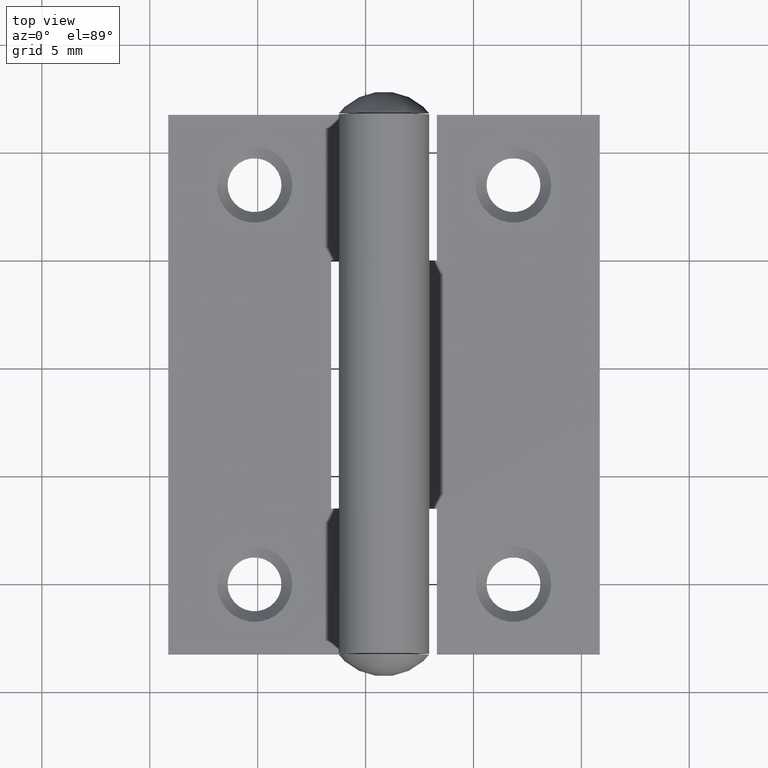
[diagram: clean part render]
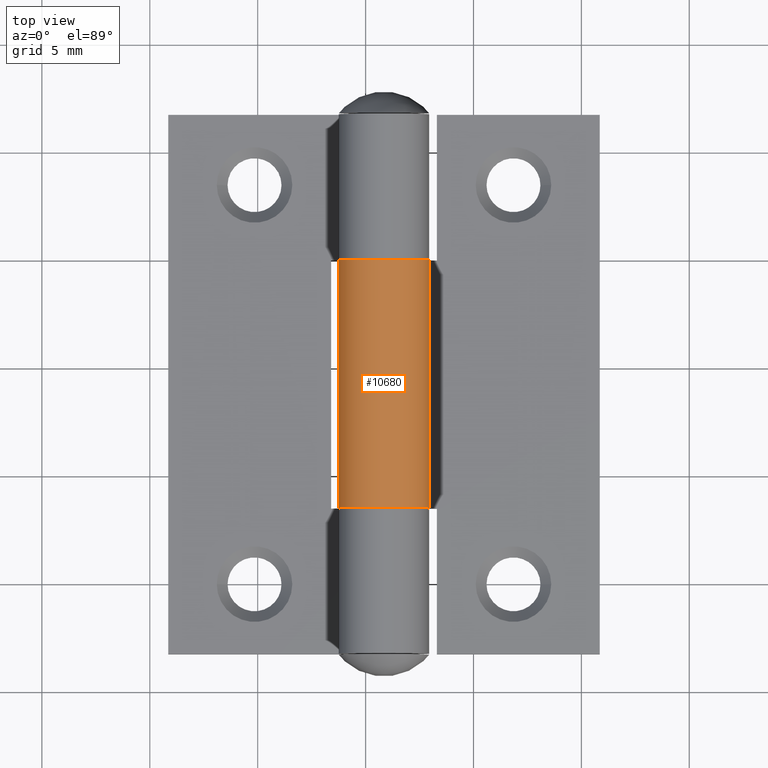
[diagram: same view with one face highlighted and labeled with its STEP entity id]
A machine part, top view. The second image highlights one B-rep face of the part: STEP entity #10680.
In plain terms, the highlighted cylindrical surface (partial cylindrical patch) has radius 2.1 mm, axis along (0, 1, -0).
Its self-contained STEP definition (entity closure, byte-faithful):
#32 = DIRECTION ( 'NONE',  ( 0.000000000000000000, 0.000000000000000000, -1.000000000000000000 ) ) ;
#181 = EDGE_LOOP ( 'NONE', ( #5241, #6481, #1416, #2288 ) ) ;
#466 = DIRECTION ( 'NONE',  ( 0.000000000000000000, 0.000000000000000000, -1.000000000000000000 ) ) ;
#794 = VERTEX_POINT ( 'NONE', #11299 ) ;
#841 = CARTESIAN_POINT ( 'NONE',  ( -3.749242250247063257, -5.750000000000001776, 0.8000000000000000444 ) ) ;
#925 = VERTEX_POINT ( 'NONE', #8075 ) ;
#1055 = DIRECTION ( 'NONE',  ( 0.000000000000000000, 0.000000000000000000, 1.000000000000000000 ) ) ;
#1316 = EDGE_CURVE ( 'NONE', #9497, #794, #11236, .T. ) ;
#1416 = ORIENTED_EDGE ( 'NONE', *, *, #5934, .T. ) ;
#1774 = CARTESIAN_POINT ( 'NONE',  ( -2.100000000000000089, 5.750000000000000000, 2.100000000000000089 ) ) ;
#2288 = ORIENTED_EDGE ( 'NONE', *, *, #8865, .T. ) ;
#2298 = FACE_OUTER_BOUND ( 'NONE', #181, .T. ) ;
#2603 = VECTOR ( 'NONE', #3837, 1000.000000000000000 ) ;
#2668 = CARTESIAN_POINT ( 'NONE',  ( -2.099999999999999645, 5.750000000000000000, 2.732189474663468709E-16 ) ) ;
#2675 = AXIS2_PLACEMENT_3D ( 'NONE', #9840, #6306, #1055 ) ;
#3837 = DIRECTION ( 'NONE',  ( -0.000000000000000000, -1.000000000000000000, -0.000000000000000000 ) ) ;
#3869 = AXIS2_PLACEMENT_3D ( 'NONE', #6568, #8365, #466 ) ;
#5041 = DIRECTION ( 'NONE',  ( -0.000000000000000000, -1.000000000000000000, -0.000000000000000000 ) ) ;
#5053 = AXIS2_PLACEMENT_3D ( 'NONE', #1774, #11301, #32 ) ;
#5241 = ORIENTED_EDGE ( 'NONE', *, *, #1316, .F. ) ;
#5318 = EDGE_CURVE ( 'NONE', #9497, #925, #7748, .T. ) ;
#5578 = CARTESIAN_POINT ( 'NONE',  ( -2.099999999999999645, 12.50000000000000000, 0.000000000000000000 ) ) ;
#5934 = EDGE_CURVE ( 'NONE', #925, #9910, #10323, .T. ) ;
#6306 = DIRECTION ( 'NONE',  ( 0.000000000000000000, 1.000000000000000000, -0.000000000000000000 ) ) ;
#6481 = ORIENTED_EDGE ( 'NONE', *, *, #5318, .T. ) ;
#6568 = CARTESIAN_POINT ( 'NONE',  ( -2.100000000000000089, 12.50000000000000000, 2.100000000000000089 ) ) ;
#7748 = CIRCLE ( 'NONE', #5053, 2.099999999999999645 ) ;
#7806 = CARTESIAN_POINT ( 'NONE',  ( -3.749242250247063257, 12.50000000000000000, 0.8000000000000001554 ) ) ;
#8075 = CARTESIAN_POINT ( 'NONE',  ( -3.749242250247063257, 5.750000000000000000, 0.8000000000000000444 ) ) ;
#8365 = DIRECTION ( 'NONE',  ( -0.000000000000000000, -1.000000000000000000, -0.000000000000000000 ) ) ;
#8865 = EDGE_CURVE ( 'NONE', #9910, #794, #11216, .T. ) ;
#9004 = CYLINDRICAL_SURFACE ( 'NONE', #3869, 2.099999999999999645 ) ;
#9497 = VERTEX_POINT ( 'NONE', #2668 ) ;
#9840 = CARTESIAN_POINT ( 'NONE',  ( -2.100000000000000089, -5.750000000000001776, 2.100000000000000089 ) ) ;
#9910 = VERTEX_POINT ( 'NONE', #841 ) ;
#9934 = VECTOR ( 'NONE', #5041, 1000.000000000000000 ) ;
#10323 = LINE ( 'NONE', #7806, #9934 ) ;
#10680 = ADVANCED_FACE ( 'NONE', ( #2298 ), #9004, .T. ) ;
#11216 = CIRCLE ( 'NONE', #2675, 2.099999999999999201 ) ;
#11236 = LINE ( 'NONE', #5578, #2603 ) ;
#11299 = CARTESIAN_POINT ( 'NONE',  ( -2.099999999999999645, -5.750000000000000000, 2.732189474663468709E-16 ) ) ;
#11301 = DIRECTION ( 'NONE',  ( 0.000000000000000000, -1.000000000000000000, 0.000000000000000000 ) ) ;